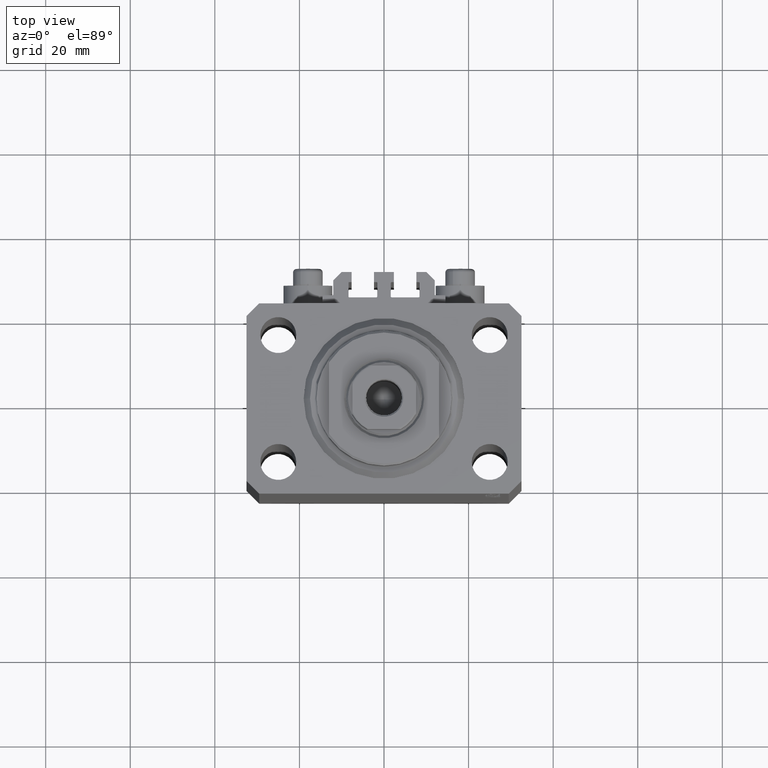
[diagram: clean part render]
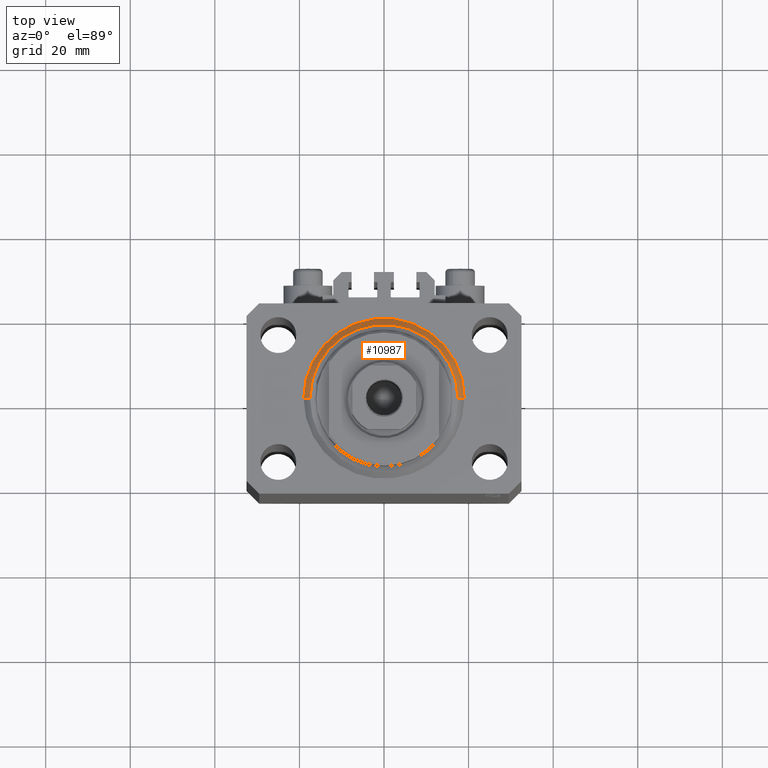
[diagram: same view with one face highlighted and labeled with its STEP entity id]
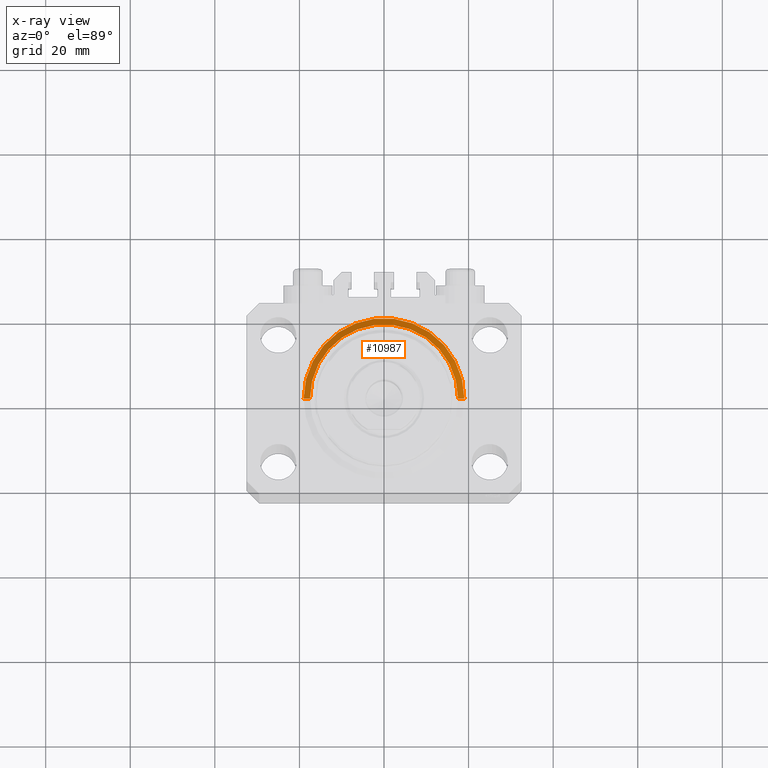
[diagram: x-ray of the same camera — body ghosted, the highlighted face saturated]
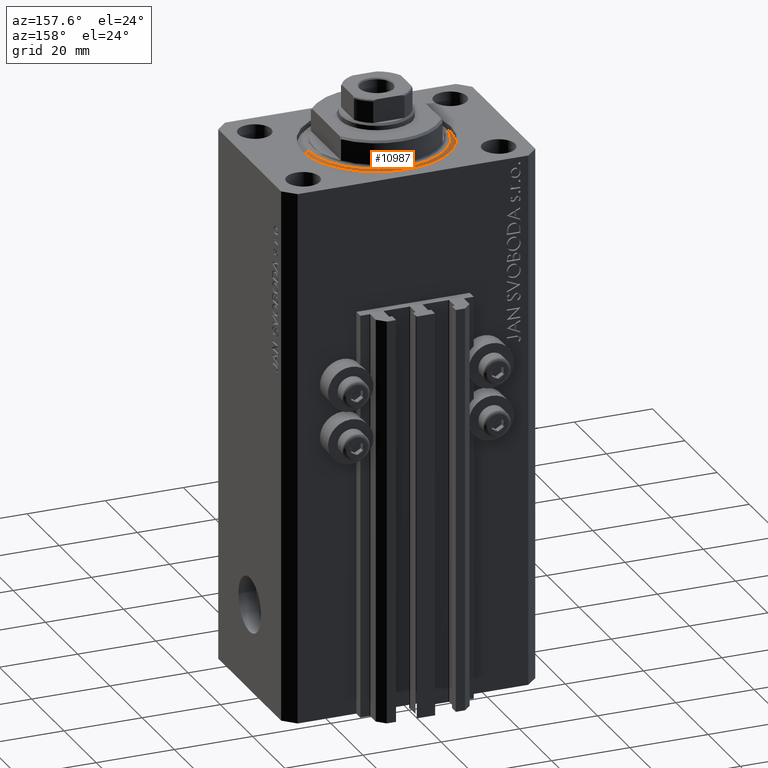
[diagram: same view with one face highlighted and labeled with its STEP entity id]
A machine part, top view. The second image highlights one B-rep face of the part: STEP entity #10987.
The next image is the same camera in x-ray: the body ghosted, the highlighted face saturated — about 0% of this face is hidden behind the body in this view.
A second angle (auxiliary view) of the same face is appended — the face is thin or edge-on in the first view.
In plain terms, the highlighted conical surface has half-angle 45 deg.
Its self-contained STEP definition (entity closure, byte-faithful):
#106 = VECTOR ( 'NONE', #42009, 1000.000000000000000 ) ;
#760 = DIRECTION ( 'NONE',  ( 0.7071067811865483499, 0.000000000000000000, 0.7071067811865467956 ) ) ;
#1661 = LINE ( 'NONE', #16252, #34549 ) ;
#1713 = DIRECTION ( 'NONE',  ( 1.000000000000000000, 0.000000000000000000, 0.000000000000000000 ) ) ;
#3874 = AXIS2_PLACEMENT_3D ( 'NONE', #24407, #6465, #17465 ) ;
#6184 = CIRCLE ( 'NONE', #45912, 19.00000000000000000 ) ;
#6465 = DIRECTION ( 'NONE',  ( -0.000000000000000000, -0.000000000000000000, -1.000000000000000000 ) ) ;
#7748 = EDGE_CURVE ( 'NONE', #37569, #39626, #15353, .T. ) ;
#10109 = CONICAL_SURFACE ( 'NONE', #17751, 19.00000000000000000, 0.7853981633974492782 ) ;
#10416 = EDGE_CURVE ( 'NONE', #37569, #34787, #45601, .T. ) ;
#10536 = CARTESIAN_POINT ( 'NONE',  ( 19.00000000000000000, 2.326828918379970970E-15, 1.500000000000001332 ) ) ;
#10987 = ADVANCED_FACE ( 'NONE', ( #29945 ), #10109, .T. ) ;
#11310 = VERTEX_POINT ( 'NONE', #10536 ) ;
#12719 = DIRECTION ( 'NONE',  ( -0.000000000000000000, -0.000000000000000000, 1.000000000000000000 ) ) ;
#15353 = CIRCLE ( 'NONE', #3874, 17.49999999999999645 ) ;
#16252 = CARTESIAN_POINT ( 'NONE',  ( 19.00000000000000000, 0.000000000000000000, 1.500000000000001332 ) ) ;
#17465 = DIRECTION ( 'NONE',  ( 1.000000000000000000, 0.000000000000000000, 0.000000000000000000 ) ) ;
#17751 = AXIS2_PLACEMENT_3D ( 'NONE', #41187, #12719, #1713 ) ;
#23017 = ORIENTED_EDGE ( 'NONE', *, *, #7748, .F. ) ;
#24407 = CARTESIAN_POINT ( 'NONE',  ( 0.000000000000000000, 0.000000000000000000, 0.000000000000000000 ) ) ;
#25159 = EDGE_LOOP ( 'NONE', ( #23017, #33296, #45828, #40914 ) ) ;
#27398 = CARTESIAN_POINT ( 'NONE',  ( -19.00000000000000000, 2.326828918379970970E-15, 1.500000000000001332 ) ) ;
#28808 = EDGE_CURVE ( 'NONE', #11310, #34787, #6184, .T. ) ;
#29945 = FACE_OUTER_BOUND ( 'NONE', #25159, .T. ) ;
#30989 = CARTESIAN_POINT ( 'NONE',  ( -17.49999999999999645, 2.234980408443919215E-15, 0.000000000000000000 ) ) ;
#32900 = EDGE_CURVE ( 'NONE', #39626, #11310, #1661, .T. ) ;
#33296 = ORIENTED_EDGE ( 'NONE', *, *, #10416, .T. ) ;
#34549 = VECTOR ( 'NONE', #760, 1000.000000000000000 ) ;
#34787 = VERTEX_POINT ( 'NONE', #42779 ) ;
#37569 = VERTEX_POINT ( 'NONE', #30989 ) ;
#39417 = DIRECTION ( 'NONE',  ( -0.000000000000000000, -0.000000000000000000, 1.000000000000000000 ) ) ;
#39626 = VERTEX_POINT ( 'NONE', #46552 ) ;
#40914 = ORIENTED_EDGE ( 'NONE', *, *, #32900, .F. ) ;
#41187 = CARTESIAN_POINT ( 'NONE',  ( 0.000000000000000000, 0.000000000000000000, 1.500000000000001332 ) ) ;
#42009 = DIRECTION ( 'NONE',  ( -0.7071067811865483499, 8.659560562354942719E-17, 0.7071067811865467956 ) ) ;
#42779 = CARTESIAN_POINT ( 'NONE',  ( -19.00000000000000000, 0.000000000000000000, 1.500000000000001332 ) ) ;
#43250 = DIRECTION ( 'NONE',  ( 1.000000000000000000, 0.000000000000000000, 0.000000000000000000 ) ) ;
#45601 = LINE ( 'NONE', #27398, #106 ) ;
#45828 = ORIENTED_EDGE ( 'NONE', *, *, #28808, .F. ) ;
#45912 = AXIS2_PLACEMENT_3D ( 'NONE', #47071, #39417, #43250 ) ;
#46552 = CARTESIAN_POINT ( 'NONE',  ( 17.49999999999999645, 0.000000000000000000, 0.000000000000000000 ) ) ;
#47071 = CARTESIAN_POINT ( 'NONE',  ( 0.000000000000000000, 0.000000000000000000, 1.500000000000001332 ) ) ;